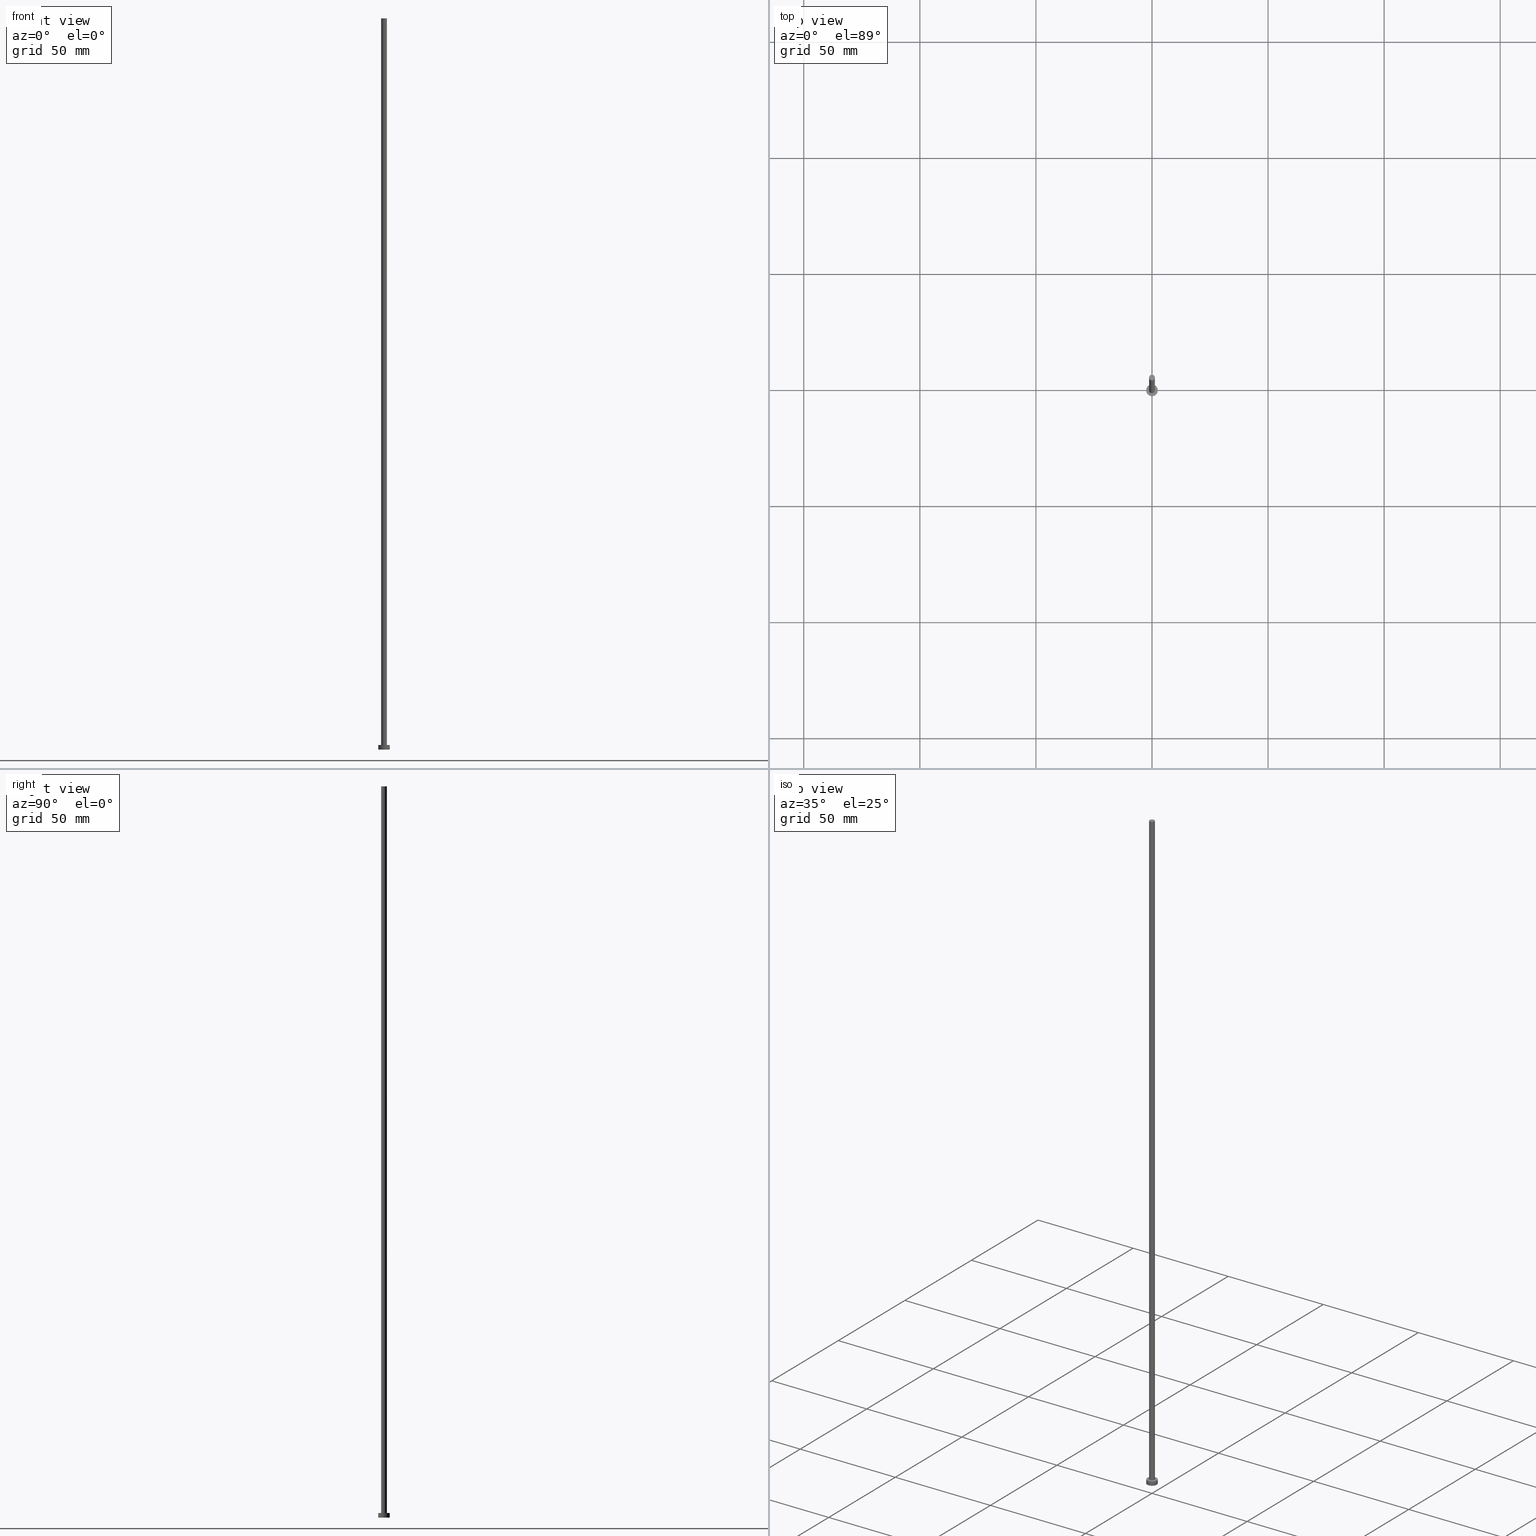
[diagram: canonical four-view strip — front | top / right | iso, engineering-drawing reading convention]
A machine part, canonical four-view strip (front | top / right | iso — engineering-drawing reading convention). The complete STEP part file that produces these views, byte-faithful:
ISO-10303-21;
HEADER;
FILE_DESCRIPTION (( 'STEP AP203' ),
    '1' );
FILE_NAME ('96a5.STEP',
    '2023-02-13T15:57:05',
    ( '' ),
    ( '' ),
    'SwSTEP 2.0',
    'SolidWorks 2019',
    '' );
FILE_SCHEMA (( 'CONFIG_CONTROL_DESIGN' ));
ENDSEC;

DATA;
#1 = DIRECTION ( 'NONE',  ( 1.000000000000000000, 0.000000000000000000, 0.000000000000000000 ) ) ;
#2 = VERTEX_POINT ( 'NONE', #211 ) ;
#3 = ORIENTED_EDGE ( 'NONE', *, *, #244, .F. ) ;
#4 = CC_DESIGN_DATE_AND_TIME_ASSIGNMENT ( #80, #124, ( #45 ) ) ;
#5 = CYLINDRICAL_SURFACE ( 'NONE', #203, 2.500000000000000000 ) ;
#6 = LOCAL_TIME ( 16, 57, 5.000000000000000000, #82 ) ;
#7 = FACE_BOUND ( 'NONE', #250, .T. ) ;
#8 = FACE_OUTER_BOUND ( 'NONE', #151, .T. ) ;
#9 = CARTESIAN_POINT ( 'NONE',  ( -2.500000000000000000, 0.000000000000000000, 0.000000000000000000 ) ) ;
#10 = CALENDAR_DATE ( 2023, 13, 2 ) ;
#11 = EDGE_CURVE ( 'NONE', #134, #88, #37, .T. ) ;
#12 = PERSON_AND_ORGANIZATION ( #85, #214 ) ;
#13 = PRODUCT_DEFINITION_SHAPE ( 'NONE', 'NONE',  #94 ) ;
#14 = COORDINATED_UNIVERSAL_TIME_OFFSET ( 1, 0, .AHEAD. ) ;
#15 = PRODUCT_RELATED_PRODUCT_CATEGORY ( 'detail', '', ( #188 ) ) ;
#16 = APPROVAL ( #112, 'NEUR�EN�' ) ;
#17 = CARTESIAN_POINT ( 'NONE',  ( 0.000000000000000000, 0.000000000000000000, 2.000000000000000000 ) ) ;
#18 = EDGE_LOOP ( 'NONE', ( #19, #87, #149, #232 ) ) ;
#19 = ORIENTED_EDGE ( 'NONE', *, *, #28, .F. ) ;
#20 = CARTESIAN_POINT ( 'NONE',  ( 0.000000000000000000, 0.000000000000000000, 315.0000000000000000 ) ) ;
#21 = ORIENTED_EDGE ( 'NONE', *, *, #244, .T. ) ;
#22 =( LENGTH_UNIT ( ) NAMED_UNIT ( * ) SI_UNIT ( .MILLI., .METRE. ) );
#23 = CARTESIAN_POINT ( 'NONE',  ( 0.000000000000000000, 0.000000000000000000, 315.0000000000000000 ) ) ;
#24 = FACE_OUTER_BOUND ( 'NONE', #34, .T. ) ;
#25 = APPROVAL_ROLE ( '' ) ;
#26 = APPROVAL ( #182, 'NEUR�EN�' ) ;
#27 = ADVANCED_BREP_SHAPE_REPRESENTATION ( '96a5', ( #165, #229 ), #90 ) ;
#28 = EDGE_CURVE ( 'NONE', #134, #121, #97, .T. ) ;
#29 = CC_DESIGN_SECURITY_CLASSIFICATION ( #45, ( #143 ) ) ;
#30 = EDGE_CURVE ( 'NONE', #137, #88, #217, .T. ) ;
#31 = EDGE_CURVE ( 'NONE', #121, #137, #223, .T. ) ;
#32 = CYLINDRICAL_SURFACE ( 'NONE', #195, 1.250000000000000000 ) ;
#33 = AXIS2_PLACEMENT_3D ( 'NONE', #185, #78, #150 ) ;
#34 = EDGE_LOOP ( 'NONE', ( #174, #132 ) ) ;
#35 = ORIENTED_EDGE ( 'NONE', *, *, #162, .F. ) ;
#36 = CARTESIAN_POINT ( 'NONE',  ( 2.500000000000000000, 3.061616997868383141E-16, 2.000000000000000000 ) ) ;
#37 = LINE ( 'NONE', #119, #43 ) ;
#38 = DIRECTION ( 'NONE',  ( 0.000000000000000000, 0.000000000000000000, 1.000000000000000000 ) ) ;
#39 = ORIENTED_EDGE ( 'NONE', *, *, #239, .F. ) ;
#40 = DIRECTION ( 'NONE',  ( -1.000000000000000000, 0.000000000000000000, 0.000000000000000000 ) ) ;
#41 = APPLICATION_PROTOCOL_DEFINITION ( 'international standard', 'config_control_design', 1994, #171 ) ;
#42 = DIRECTION ( 'NONE',  ( -1.000000000000000000, 0.000000000000000000, 0.000000000000000000 ) ) ;
#43 = VECTOR ( 'NONE', #196, 1000.000000000000000 ) ;
#44 = PERSON_AND_ORGANIZATION ( #85, #214 ) ;
#45 = SECURITY_CLASSIFICATION ( '', '', #110 ) ;
#46 = DIRECTION ( 'NONE',  ( 0.000000000000000000, 0.000000000000000000, 1.000000000000000000 ) ) ;
#47 = PERSON_AND_ORGANIZATION ( #85, #214 ) ;
#48 = LOCAL_TIME ( 16, 57, 5.000000000000000000, #14 ) ;
#49 = DIRECTION ( 'NONE',  ( -0.000000000000000000, -0.000000000000000000, -1.000000000000000000 ) ) ;
#50 = ORIENTED_EDGE ( 'NONE', *, *, #31, .T. ) ;
#51 = ORIENTED_EDGE ( 'NONE', *, *, #239, .T. ) ;
#52 = ORIENTED_EDGE ( 'NONE', *, *, #11, .F. ) ;
#53 = DIRECTION ( 'NONE',  ( -0.000000000000000000, -0.000000000000000000, -1.000000000000000000 ) ) ;
#54 = AXIS2_PLACEMENT_3D ( 'NONE', #23, #60, #42 ) ;
#55 = CARTESIAN_POINT ( 'NONE',  ( 0.000000000000000000, 0.000000000000000000, 2.000000000000000000 ) ) ;
#56 = DIRECTION ( 'NONE',  ( 1.000000000000000000, 0.000000000000000000, -0.000000000000000000 ) ) ;
#57 = FACE_OUTER_BOUND ( 'NONE', #136, .T. ) ;
#58 = EDGE_CURVE ( 'NONE', #88, #137, #226, .T. ) ;
#59 = CLOSED_SHELL ( 'NONE', ( #111, #170, #205, #225, #255, #193, #152 ) ) ;
#60 = DIRECTION ( 'NONE',  ( -0.000000000000000000, -0.000000000000000000, -1.000000000000000000 ) ) ;
#61 = APPROVAL_DATE_TIME ( #161, #26 ) ;
#62 = CC_DESIGN_APPROVAL ( #26, ( #45 ) ) ;
#63 = DIRECTION ( 'NONE',  ( 1.000000000000000000, 0.000000000000000000, 0.000000000000000000 ) ) ;
#64 = COORDINATED_UNIVERSAL_TIME_OFFSET ( 1, 0, .AHEAD. ) ;
#65 = APPLICATION_PROTOCOL_DEFINITION ( 'international standard', 'config_control_design', 1994, #206 ) ;
#66 = APPROVAL_PERSON_ORGANIZATION ( #108, #72, #227 ) ;
#67 = VERTEX_POINT ( 'NONE', #104 ) ;
#68 = CARTESIAN_POINT ( 'NONE',  ( 0.000000000000000000, 0.000000000000000000, 315.0000000000000000 ) ) ;
#69 = EDGE_CURVE ( 'NONE', #2, #67, #120, .T. ) ;
#70 = EDGE_LOOP ( 'NONE', ( #52, #254, #50, #176 ) ) ;
#71 = AXIS2_PLACEMENT_3D ( 'NONE', #198, #234, #123 ) ;
#72 = APPROVAL ( #148, 'NEUR�EN�' ) ;
#73 = DIRECTION ( 'NONE',  ( -1.000000000000000000, 0.000000000000000000, 0.000000000000000000 ) ) ;
#74 = CARTESIAN_POINT ( 'NONE',  ( 0.000000000000000000, 0.000000000000000000, 2.000000000000000000 ) ) ;
#75 = COORDINATED_UNIVERSAL_TIME_OFFSET ( 1, 0, .AHEAD. ) ;
#76 =( NAMED_UNIT ( * ) PLANE_ANGLE_UNIT ( ) SI_UNIT ( $, .RADIAN. ) );
#77 = AXIS2_PLACEMENT_3D ( 'NONE', #189, #224, #172 ) ;
#78 = DIRECTION ( 'NONE',  ( 0.000000000000000000, 0.000000000000000000, 1.000000000000000000 ) ) ;
#79 = CALENDAR_DATE ( 2023, 13, 2 ) ;
#80 = DATE_AND_TIME ( #10, #245 ) ;
#81 = CALENDAR_DATE ( 2023, 13, 2 ) ;
#82 = COORDINATED_UNIVERSAL_TIME_OFFSET ( 1, 0, .AHEAD. ) ;
#83 = VECTOR ( 'NONE', #96, 1000.000000000000000 ) ;
#84 = CIRCLE ( 'NONE', #113, 2.500000000000000000 ) ;
#85 = PERSON ( 'NEUR�EN�', 'NEUR�EN�', 'NEUR�EN�', ('NEUR�EN�'), ('NEUR�EN�'), ('NEUR�EN�') ) ;
#86 = CC_DESIGN_PERSON_AND_ORGANIZATION_ASSIGNMENT ( #144, #218, ( #143 ) ) ;
#87 = ORIENTED_EDGE ( 'NONE', *, *, #11, .T. ) ;
#88 = VERTEX_POINT ( 'NONE', #210 ) ;
#89 = ORIENTED_EDGE ( 'NONE', *, *, #30, .F. ) ;
#90 =( GEOMETRIC_REPRESENTATION_CONTEXT ( 3 ) GLOBAL_UNCERTAINTY_ASSIGNED_CONTEXT ( ( #114 ) ) GLOBAL_UNIT_ASSIGNED_CONTEXT ( ( #22, #76, #103 ) ) REPRESENTATION_CONTEXT ( 'NONE', 'WORKASPACE' ) );
#91 = CARTESIAN_POINT ( 'NONE',  ( 0.000000000000000000, 0.000000000000000000, 315.0000000000000000 ) ) ;
#92 = EDGE_LOOP ( 'NONE', ( #212, #228, #51, #231 ) ) ;
#93 = CARTESIAN_POINT ( 'NONE',  ( -2.500000000000000000, 0.000000000000000000, 2.000000000000000000 ) ) ;
#94 = PRODUCT_DEFINITION ( 'NEZN�M�', '', #143, #190 ) ;
#95 = ORIENTED_EDGE ( 'NONE', *, *, #147, .F. ) ;
#96 = DIRECTION ( 'NONE',  ( -0.000000000000000000, -0.000000000000000000, -1.000000000000000000 ) ) ;
#97 = CIRCLE ( 'NONE', #202, 1.250000000000000000 ) ;
#98 = AXIS2_PLACEMENT_3D ( 'NONE', #102, #201, #100 ) ;
#99 = MECHANICAL_CONTEXT ( 'NONE', #171, 'mechanical' ) ;
#100 = DIRECTION ( 'NONE',  ( 1.000000000000000000, 0.000000000000000000, 0.000000000000000000 ) ) ;
#101 = PERSON_AND_ORGANIZATION ( #85, #214 ) ;
#102 = CARTESIAN_POINT ( 'NONE',  ( 0.000000000000000000, 0.000000000000000000, 0.000000000000000000 ) ) ;
#103 =( NAMED_UNIT ( * ) SI_UNIT ( $, .STERADIAN. ) SOLID_ANGLE_UNIT ( ) );
#104 = CARTESIAN_POINT ( 'NONE',  ( -2.500000000000000000, 0.000000000000000000, 2.000000000000000000 ) ) ;
#105 = APPROVAL_DATE_TIME ( #130, #16 ) ;
#106 = APPROVAL_PERSON_ORGANIZATION ( #186, #16, #25 ) ;
#107 = CC_DESIGN_PERSON_AND_ORGANIZATION_ASSIGNMENT ( #44, #251, ( #188 ) ) ;
#108 = PERSON_AND_ORGANIZATION ( #85, #214 ) ;
#109 = PERSON_AND_ORGANIZATION ( #85, #214 ) ;
#110 = SECURITY_CLASSIFICATION_LEVEL ( 'unclassified' ) ;
#111 = ADVANCED_FACE ( 'NONE', ( #194 ), #32, .T. ) ;
#112 = APPROVAL_STATUS ( 'not_yet_approved' ) ;
#113 = AXIS2_PLACEMENT_3D ( 'NONE', #213, #46, #145 ) ;
#114 = UNCERTAINTY_MEASURE_WITH_UNIT (LENGTH_MEASURE( 1.000000000000000082E-05 ), #22, 'distance_accuracy_value', 'NONE');
#115 = AXIS2_PLACEMENT_3D ( 'NONE', #180, #238, #122 ) ;
#116 = ORIENTED_EDGE ( 'NONE', *, *, #158, .T. ) ;
#117 = EDGE_LOOP ( 'NONE', ( #21, #209 ) ) ;
#118 = CARTESIAN_POINT ( 'NONE',  ( 0.000000000000000000, 0.000000000000000000, 0.000000000000000000 ) ) ;
#119 = CARTESIAN_POINT ( 'NONE',  ( 1.250000000000000000, 1.530808498934191571E-16, 315.0000000000000000 ) ) ;
#120 = CIRCLE ( 'NONE', #33, 2.500000000000000000 ) ;
#121 = VERTEX_POINT ( 'NONE', #181 ) ;
#122 = DIRECTION ( 'NONE',  ( 1.000000000000000000, 0.000000000000000000, 0.000000000000000000 ) ) ;
#123 = DIRECTION ( 'NONE',  ( 1.000000000000000000, 0.000000000000000000, 0.000000000000000000 ) ) ;
#124 = DATE_TIME_ROLE ( 'classification_date' ) ;
#125 = LINE ( 'NONE', #93, #154 ) ;
#126 = CALENDAR_DATE ( 2023, 13, 2 ) ;
#127 = DATE_TIME_ROLE ( 'creation_date' ) ;
#128 = CC_DESIGN_APPROVAL ( #72, ( #143 ) ) ;
#129 = CC_DESIGN_DATE_AND_TIME_ASSIGNMENT ( #166, #127, ( #94 ) ) ;
#130 = DATE_AND_TIME ( #173, #6 ) ;
#131 = PERSON_AND_ORGANIZATION_ROLE ( 'design_supplier' ) ;
#132 = ORIENTED_EDGE ( 'NONE', *, *, #28, .T. ) ;
#133 = CC_DESIGN_PERSON_AND_ORGANIZATION_ASSIGNMENT ( #12, #249, ( #94 ) ) ;
#134 = VERTEX_POINT ( 'NONE', #219 ) ;
#135 = VERTEX_POINT ( 'NONE', #9 ) ;
#136 = EDGE_LOOP ( 'NONE', ( #35, #39 ) ) ;
#137 = VERTEX_POINT ( 'NONE', #167 ) ;
#138 = CARTESIAN_POINT ( 'NONE',  ( 0.000000000000000000, 0.000000000000000000, 2.000000000000000000 ) ) ;
#139 = CC_DESIGN_PERSON_AND_ORGANIZATION_ASSIGNMENT ( #109, #131, ( #143 ) ) ;
#140 = DIRECTION ( 'NONE',  ( 1.000000000000000000, 0.000000000000000000, 0.000000000000000000 ) ) ;
#141 = FACE_OUTER_BOUND ( 'NONE', #117, .T. ) ;
#142 = DIRECTION ( 'NONE',  ( 1.000000000000000000, 0.000000000000000000, -0.000000000000000000 ) ) ;
#143 = PRODUCT_DEFINITION_FORMATION_WITH_SPECIFIED_SOURCE ( 'LIBOVOLN�', '', #188, .NOT_KNOWN. ) ;
#144 = PERSON_AND_ORGANIZATION ( #85, #214 ) ;
#145 = DIRECTION ( 'NONE',  ( 1.000000000000000000, 0.000000000000000000, 0.000000000000000000 ) ) ;
#146 = DATE_AND_TIME ( #81, #48 ) ;
#147 = EDGE_CURVE ( 'NONE', #2, #248, #169, .T. ) ;
#148 = APPROVAL_STATUS ( 'not_yet_approved' ) ;
#149 = ORIENTED_EDGE ( 'NONE', *, *, #58, .T. ) ;
#150 = DIRECTION ( 'NONE',  ( 1.000000000000000000, 0.000000000000000000, 0.000000000000000000 ) ) ;
#151 = EDGE_LOOP ( 'NONE', ( #95, #3, #116, #208 ) ) ;
#152 = ADVANCED_FACE ( 'NONE', ( #24 ), #156, .T. ) ;
#153 = DIRECTION ( 'NONE',  ( -0.000000000000000000, -0.000000000000000000, -1.000000000000000000 ) ) ;
#154 = VECTOR ( 'NONE', #183, 1000.000000000000000 ) ;
#155 = DIRECTION ( 'NONE',  ( 0.000000000000000000, 0.000000000000000000, 1.000000000000000000 ) ) ;
#156 = PLANE ( 'NONE',  #240 ) ;
#157 = LOCAL_TIME ( 16, 57, 5.000000000000000000, #64 ) ;
#158 = EDGE_CURVE ( 'NONE', #67, #135, #125, .T. ) ;
#159 = PLANE ( 'NONE',  #230 ) ;
#160 = FACE_OUTER_BOUND ( 'NONE', #70, .T. ) ;
#161 = DATE_AND_TIME ( #126, #178 ) ;
#162 = EDGE_CURVE ( 'NONE', #135, #248, #191, .T. ) ;
#163 = CC_DESIGN_APPROVAL ( #16, ( #94 ) ) ;
#164 = APPROVAL_ROLE ( '' ) ;
#165 = MANIFOLD_SOLID_BREP ( 'P�idat vysunut�m3', #59 ) ;
#166 = DATE_AND_TIME ( #79, #157 ) ;
#167 = CARTESIAN_POINT ( 'NONE',  ( -1.250000000000000000, 0.000000000000000000, 2.000000000000000000 ) ) ;
#168 = VECTOR ( 'NONE', #49, 1000.000000000000000 ) ;
#169 = LINE ( 'NONE', #36, #83 ) ;
#170 = ADVANCED_FACE ( 'NONE', ( #215 ), #233, .T. ) ;
#171 = APPLICATION_CONTEXT ( 'configuration controlled 3d designs of mechanical parts and assemblies' ) ;
#172 = DIRECTION ( 'NONE',  ( 1.000000000000000000, 0.000000000000000000, 0.000000000000000000 ) ) ;
#173 = CALENDAR_DATE ( 2023, 13, 2 ) ;
#174 = ORIENTED_EDGE ( 'NONE', *, *, #243, .T. ) ;
#175 = DIRECTION ( 'NONE',  ( 0.000000000000000000, 0.000000000000000000, 1.000000000000000000 ) ) ;
#176 = ORIENTED_EDGE ( 'NONE', *, *, #30, .T. ) ;
#177 = DIRECTION ( 'NONE',  ( 0.000000000000000000, 0.000000000000000000, 1.000000000000000000 ) ) ;
#178 = LOCAL_TIME ( 16, 57, 5.000000000000000000, #75 ) ;
#179 = DIRECTION ( 'NONE',  ( -1.000000000000000000, 0.000000000000000000, 0.000000000000000000 ) ) ;
#180 = CARTESIAN_POINT ( 'NONE',  ( 0.000000000000000000, 0.000000000000000000, 315.0000000000000000 ) ) ;
#181 = CARTESIAN_POINT ( 'NONE',  ( -1.250000000000000000, 0.000000000000000000, 315.0000000000000000 ) ) ;
#182 = APPROVAL_STATUS ( 'not_yet_approved' ) ;
#183 = DIRECTION ( 'NONE',  ( -0.000000000000000000, -0.000000000000000000, -1.000000000000000000 ) ) ;
#184 = CIRCLE ( 'NONE', #98, 2.500000000000000000 ) ;
#185 = CARTESIAN_POINT ( 'NONE',  ( 0.000000000000000000, 0.000000000000000000, 2.000000000000000000 ) ) ;
#186 = PERSON_AND_ORGANIZATION ( #85, #214 ) ;
#187 = PERSON_AND_ORGANIZATION_ROLE ( 'classification_officer' ) ;
#188 = PRODUCT ( '96a5', '96a5', '', ( #99 ) ) ;
#189 = CARTESIAN_POINT ( 'NONE',  ( 0.000000000000000000, 0.000000000000000000, 2.000000000000000000 ) ) ;
#190 = DESIGN_CONTEXT ( 'detailed design', #206, 'design' ) ;
#191 = CIRCLE ( 'NONE', #71, 2.500000000000000000 ) ;
#192 = CC_DESIGN_PERSON_AND_ORGANIZATION_ASSIGNMENT ( #47, #187, ( #45 ) ) ;
#193 = ADVANCED_FACE ( 'NONE', ( #160 ), #200, .T. ) ;
#194 = FACE_OUTER_BOUND ( 'NONE', #18, .T. ) ;
#195 = AXIS2_PLACEMENT_3D ( 'NONE', #91, #236, #179 ) ;
#196 = DIRECTION ( 'NONE',  ( -0.000000000000000000, -0.000000000000000000, -1.000000000000000000 ) ) ;
#197 = CARTESIAN_POINT ( 'NONE',  ( 2.500000000000000000, 3.061616997868383141E-16, 0.000000000000000000 ) ) ;
#198 = CARTESIAN_POINT ( 'NONE',  ( 0.000000000000000000, 0.000000000000000000, 0.000000000000000000 ) ) ;
#199 = AXIS2_PLACEMENT_3D ( 'NONE', #242, #38, #142 ) ;
#200 = CYLINDRICAL_SURFACE ( 'NONE', #54, 1.250000000000000000 ) ;
#201 = DIRECTION ( 'NONE',  ( 0.000000000000000000, 0.000000000000000000, 1.000000000000000000 ) ) ;
#202 = AXIS2_PLACEMENT_3D ( 'NONE', #20, #175, #1 ) ;
#203 = AXIS2_PLACEMENT_3D ( 'NONE', #74, #153, #73 ) ;
#204 = COORDINATED_UNIVERSAL_TIME_OFFSET ( 1, 0, .AHEAD. ) ;
#205 = ADVANCED_FACE ( 'NONE', ( #8 ), #5, .T. ) ;
#206 = APPLICATION_CONTEXT ( 'configuration controlled 3d designs of mechanical parts and assemblies' ) ;
#207 = CARTESIAN_POINT ( 'NONE',  ( -1.250000000000000000, 0.000000000000000000, 315.0000000000000000 ) ) ;
#208 = ORIENTED_EDGE ( 'NONE', *, *, #162, .T. ) ;
#209 = ORIENTED_EDGE ( 'NONE', *, *, #69, .T. ) ;
#210 = CARTESIAN_POINT ( 'NONE',  ( 1.250000000000000000, 1.530808498934191571E-16, 2.000000000000000000 ) ) ;
#211 = CARTESIAN_POINT ( 'NONE',  ( 2.500000000000000000, 3.061616997868383141E-16, 2.000000000000000000 ) ) ;
#212 = ORIENTED_EDGE ( 'NONE', *, *, #69, .F. ) ;
#213 = CARTESIAN_POINT ( 'NONE',  ( 0.000000000000000000, 0.000000000000000000, 2.000000000000000000 ) ) ;
#214 = ORGANIZATION ( 'NEUR�EN�', 'NEUR�EN�', '' ) ;
#215 = FACE_OUTER_BOUND ( 'NONE', #92, .T. ) ;
#216 = DIRECTION ( 'NONE',  ( 1.000000000000000000, 0.000000000000000000, -0.000000000000000000 ) ) ;
#217 = CIRCLE ( 'NONE', #77, 1.250000000000000000 ) ;
#218 = PERSON_AND_ORGANIZATION_ROLE ( 'creator' ) ;
#219 = CARTESIAN_POINT ( 'NONE',  ( 1.250000000000000000, 1.530808498934191571E-16, 315.0000000000000000 ) ) ;
#220 = PLANE ( 'NONE',  #199 ) ;
#221 = APPROVAL_DATE_TIME ( #146, #72 ) ;
#222 = AXIS2_PLACEMENT_3D ( 'NONE', #55, #53, #40 ) ;
#223 = LINE ( 'NONE', #207, #168 ) ;
#224 = DIRECTION ( 'NONE',  ( 0.000000000000000000, 0.000000000000000000, 1.000000000000000000 ) ) ;
#225 = ADVANCED_FACE ( 'NONE', ( #7, #141 ), #159, .T. ) ;
#226 = CIRCLE ( 'NONE', #253, 1.250000000000000000 ) ;
#227 = APPROVAL_ROLE ( '' ) ;
#228 = ORIENTED_EDGE ( 'NONE', *, *, #147, .T. ) ;
#229 = AXIS2_PLACEMENT_3D ( 'NONE', #118, #155, #140 ) ;
#230 = AXIS2_PLACEMENT_3D ( 'NONE', #138, #237, #56 ) ;
#231 = ORIENTED_EDGE ( 'NONE', *, *, #158, .F. ) ;
#232 = ORIENTED_EDGE ( 'NONE', *, *, #31, .F. ) ;
#233 = CYLINDRICAL_SURFACE ( 'NONE', #222, 2.500000000000000000 ) ;
#234 = DIRECTION ( 'NONE',  ( 0.000000000000000000, 0.000000000000000000, 1.000000000000000000 ) ) ;
#235 = CIRCLE ( 'NONE', #115, 1.250000000000000000 ) ;
#236 = DIRECTION ( 'NONE',  ( -0.000000000000000000, -0.000000000000000000, -1.000000000000000000 ) ) ;
#237 = DIRECTION ( 'NONE',  ( 0.000000000000000000, 0.000000000000000000, 1.000000000000000000 ) ) ;
#238 = DIRECTION ( 'NONE',  ( 0.000000000000000000, 0.000000000000000000, 1.000000000000000000 ) ) ;
#239 = EDGE_CURVE ( 'NONE', #248, #135, #184, .T. ) ;
#240 = AXIS2_PLACEMENT_3D ( 'NONE', #68, #177, #216 ) ;
#241 = SHAPE_DEFINITION_REPRESENTATION ( #13, #27 ) ;
#242 = CARTESIAN_POINT ( 'NONE',  ( 0.000000000000000000, 0.000000000000000000, 0.000000000000000000 ) ) ;
#243 = EDGE_CURVE ( 'NONE', #121, #134, #235, .T. ) ;
#244 = EDGE_CURVE ( 'NONE', #67, #2, #84, .T. ) ;
#245 = LOCAL_TIME ( 16, 57, 5.000000000000000000, #204 ) ;
#246 = DIRECTION ( 'NONE',  ( 0.000000000000000000, 0.000000000000000000, 1.000000000000000000 ) ) ;
#247 = APPROVAL_PERSON_ORGANIZATION ( #101, #26, #164 ) ;
#248 = VERTEX_POINT ( 'NONE', #197 ) ;
#249 = PERSON_AND_ORGANIZATION_ROLE ( 'creator' ) ;
#250 = EDGE_LOOP ( 'NONE', ( #89, #252 ) ) ;
#251 = PERSON_AND_ORGANIZATION_ROLE ( 'design_owner' ) ;
#252 = ORIENTED_EDGE ( 'NONE', *, *, #58, .F. ) ;
#253 = AXIS2_PLACEMENT_3D ( 'NONE', #17, #246, #63 ) ;
#254 = ORIENTED_EDGE ( 'NONE', *, *, #243, .F. ) ;
#255 = ADVANCED_FACE ( 'NONE', ( #57 ), #220, .F. ) ;
ENDSEC;
END-ISO-10303-21;
